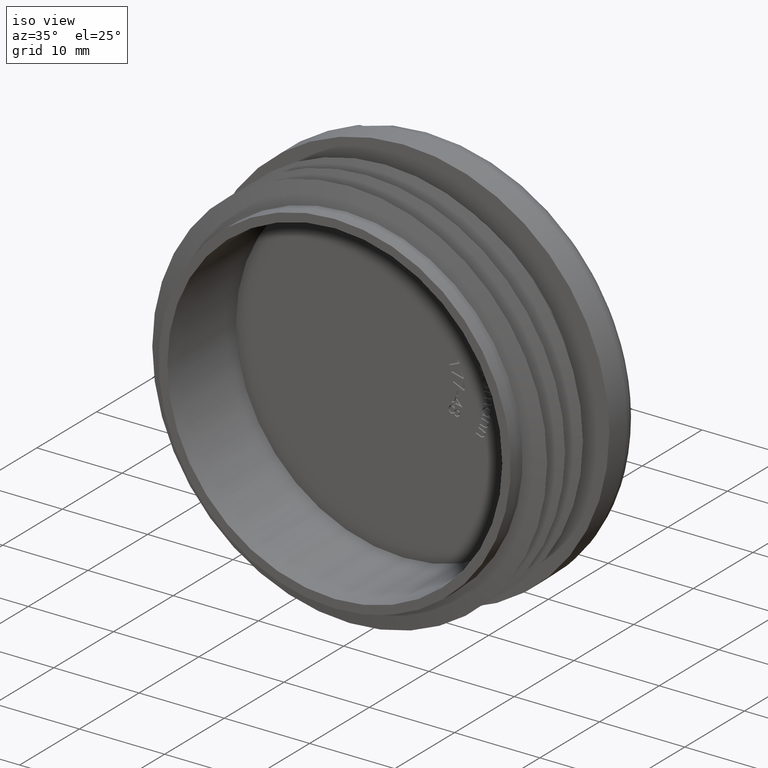
[diagram: clean part render]
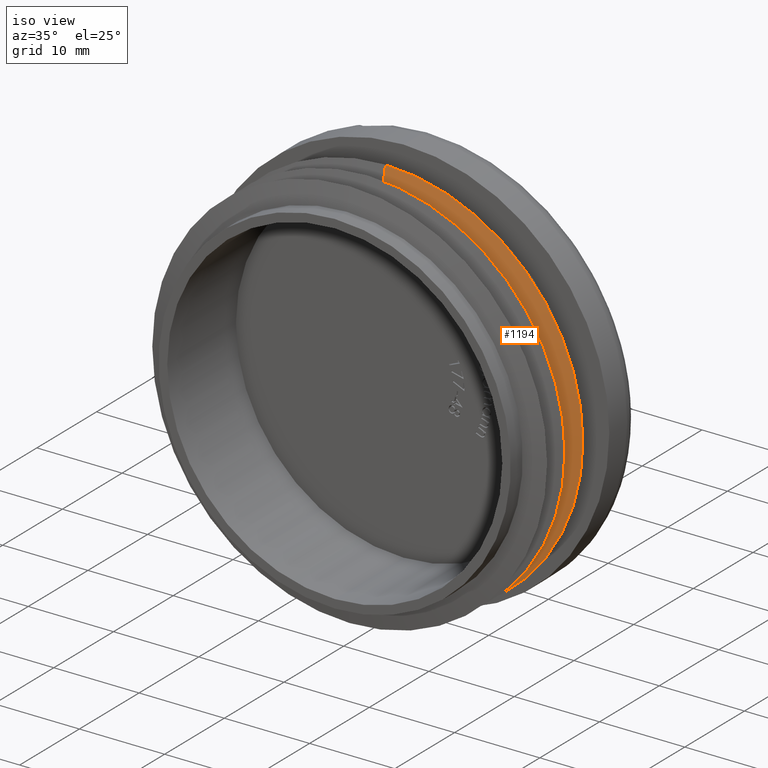
[diagram: same view with one face highlighted and labeled with its STEP entity id]
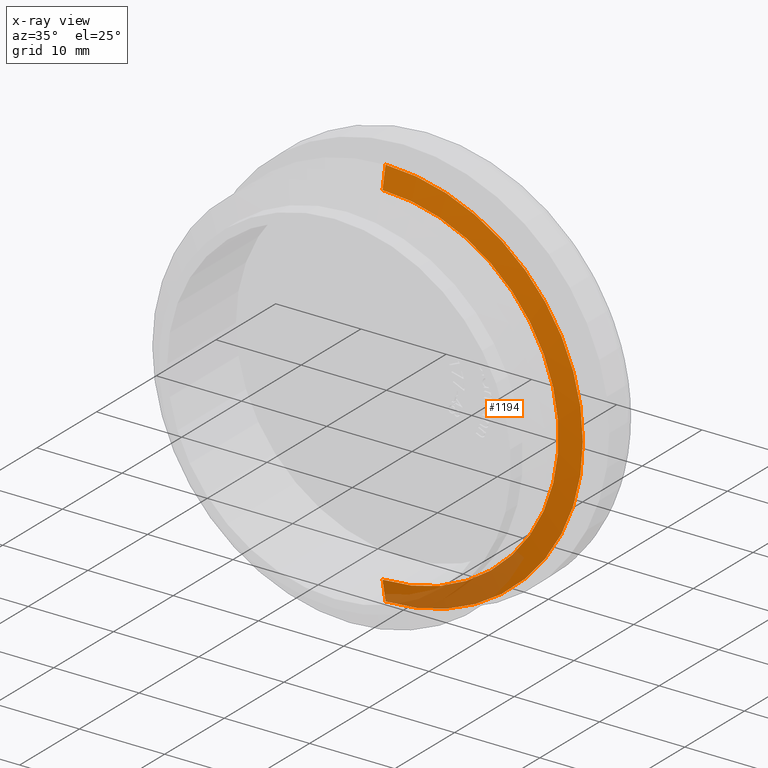
[diagram: x-ray of the same camera — body ghosted, the highlighted face saturated]
A machine part, iso view. The second image highlights one B-rep face of the part: STEP entity #1194.
The next image is the same camera in x-ray: the body ghosted, the highlighted face saturated — about 18% of this face is hidden behind the body in this view.
In plain terms, the highlighted conical surface has half-angle 78.69 deg.
Its self-contained STEP definition (entity closure, byte-faithful):
#376 = CIRCLE ( 'NONE', #6085, 20.64999999999999900 ) ;
#457 = EDGE_CURVE ( 'NONE', #1289, #3880, #376, .T. ) ;
#547 = CIRCLE ( 'NONE', #2658, 23.14999999999999900 ) ;
#1079 = CARTESIAN_POINT ( 'NONE',  ( 2.528895640239284100E-015, -3.500000000000000900, -20.64999999999999900 ) ) ;
#1194 = ADVANCED_FACE ( 'NONE', ( #1294 ), #4700, .T. ) ;
#1289 = VERTEX_POINT ( 'NONE', #1309 ) ;
#1294 = FACE_OUTER_BOUND ( 'NONE', #8161, .T. ) ;
#1309 = CARTESIAN_POINT ( 'NONE',  ( 0.0000000000000000000, -3.500000000000000900, 20.64999999999999900 ) ) ;
#2411 = DIRECTION ( 'NONE',  ( 1.200864985790634400E-016, 0.1961161351381842400, -0.9805806756909202200 ) ) ;
#2592 = EDGE_CURVE ( 'NONE', #5748, #5041, #547, .T. ) ;
#2658 = AXIS2_PLACEMENT_3D ( 'NONE', #3490, #8464, #4245 ) ;
#2671 = DIRECTION ( 'NONE',  ( 0.0000000000000000000, 0.0000000000000000000, 1.000000000000000000 ) ) ;
#2688 = DIRECTION ( 'NONE',  ( -0.0000000000000000000, 1.000000000000000000, -0.0000000000000000000 ) ) ;
#2701 = CARTESIAN_POINT ( 'NONE',  ( 0.0000000000000000000, -3.500000000000000900, 0.0000000000000000000 ) ) ;
#2787 = EDGE_CURVE ( 'NONE', #1289, #5748, #5820, .T. ) ;
#2821 = DIRECTION ( 'NONE',  ( 0.0000000000000000000, 0.0000000000000000000, 1.000000000000000000 ) ) ;
#3272 = CARTESIAN_POINT ( 'NONE',  ( 0.0000000000000000000, -3.500000000000000900, 0.0000000000000000000 ) ) ;
#3490 = CARTESIAN_POINT ( 'NONE',  ( 0.0000000000000000000, -3.000000000000000400, 0.0000000000000000000 ) ) ;
#3533 = DIRECTION ( 'NONE',  ( -0.0000000000000000000, 1.000000000000000000, -0.0000000000000000000 ) ) ;
#3858 = CARTESIAN_POINT ( 'NONE',  ( 2.835057340026122400E-015, -3.000000000000000400, -23.14999999999999900 ) ) ;
#3870 = ORIENTED_EDGE ( 'NONE', *, *, #457, .T. ) ;
#3880 = VERTEX_POINT ( 'NONE', #1079 ) ;
#4245 = DIRECTION ( 'NONE',  ( 0.0000000000000000000, 0.0000000000000000000, 1.000000000000000000 ) ) ;
#4246 = VECTOR ( 'NONE', #2411, 999.9999999999998900 ) ;
#4687 = CARTESIAN_POINT ( 'NONE',  ( 0.0000000000000000000, -3.000000000000000400, 23.14999999999999900 ) ) ;
#4700 = CONICAL_SURFACE ( 'NONE', #5706, 20.64999999999999900, 1.373400766945015700 ) ;
#5041 = VERTEX_POINT ( 'NONE', #3858 ) ;
#5706 = AXIS2_PLACEMENT_3D ( 'NONE', #3272, #3533, #2821 ) ;
#5748 = VERTEX_POINT ( 'NONE', #4687 ) ;
#5820 = LINE ( 'NONE', #6666, #6992 ) ;
#6064 = ORIENTED_EDGE ( 'NONE', *, *, #7604, .T. ) ;
#6085 = AXIS2_PLACEMENT_3D ( 'NONE', #2701, #2688, #2671 ) ;
#6513 = ORIENTED_EDGE ( 'NONE', *, *, #2592, .F. ) ;
#6569 = DIRECTION ( 'NONE',  ( 0.0000000000000000000, 0.1961161351381842400, 0.9805806756909202200 ) ) ;
#6666 = CARTESIAN_POINT ( 'NONE',  ( 0.0000000000000000000, -3.500000000000000900, 20.64999999999999900 ) ) ;
#6992 = VECTOR ( 'NONE', #6569, 999.9999999999998900 ) ;
#7529 = CARTESIAN_POINT ( 'NONE',  ( 2.528895640239284100E-015, -3.500000000000000900, -20.64999999999999900 ) ) ;
#7604 = EDGE_CURVE ( 'NONE', #3880, #5041, #7827, .T. ) ;
#7827 = LINE ( 'NONE', #7529, #4246 ) ;
#8108 = ORIENTED_EDGE ( 'NONE', *, *, #2787, .F. ) ;
#8161 = EDGE_LOOP ( 'NONE', ( #3870, #6064, #6513, #8108 ) ) ;
#8464 = DIRECTION ( 'NONE',  ( -0.0000000000000000000, 1.000000000000000000, -0.0000000000000000000 ) ) ;